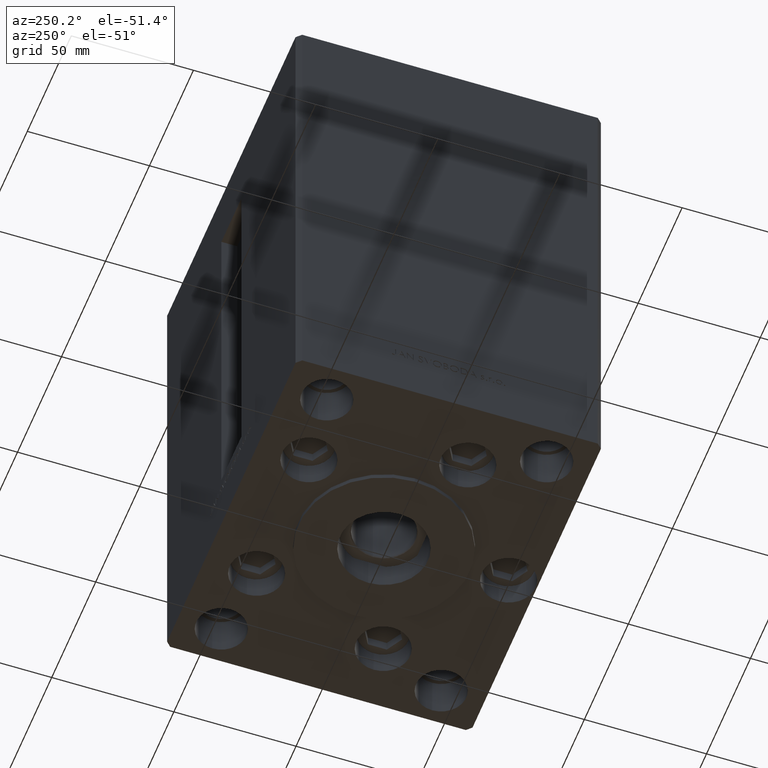
[diagram: clean part render]
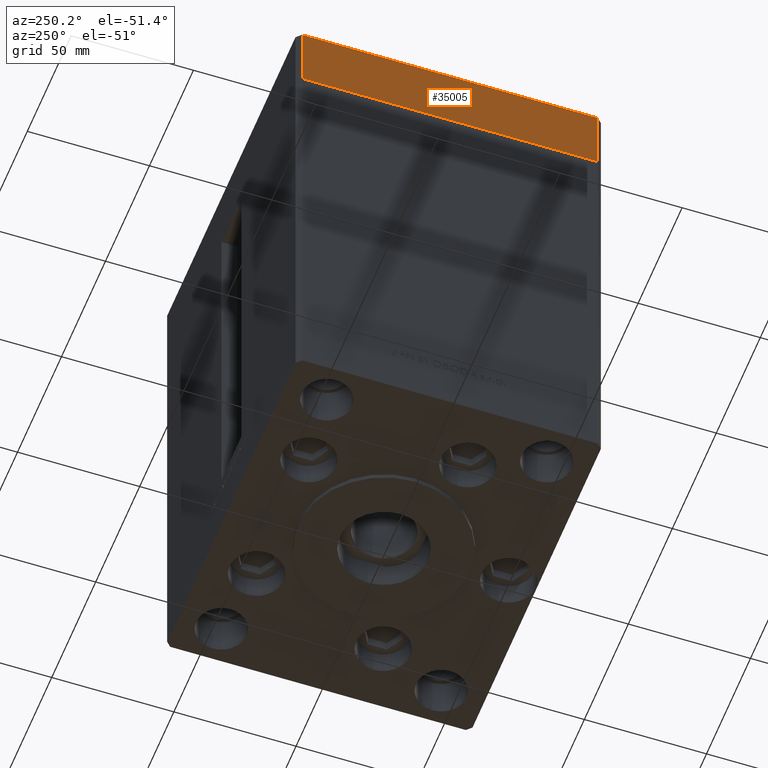
[diagram: same view with one face highlighted and labeled with its STEP entity id]
A machine part, auxiliary view. The second image highlights one B-rep face of the part: STEP entity #35005.
In plain terms, the highlighted planar face has unit normal (-1, 0, 0).
Its self-contained STEP definition (entity closure, byte-faithful):
#1502 = CARTESIAN_POINT ( 'NONE',  ( -75.00000000000001421, -60.50000000000001421, -27.00000000000000000 ) ) ;
#2463 = ORIENTED_EDGE ( 'NONE', *, *, #10858, .F. ) ;
#5903 = CARTESIAN_POINT ( 'NONE',  ( -75.00000000000001421, 60.49999999999997158, 0.000000000000000000 ) ) ;
#5921 = ORIENTED_EDGE ( 'NONE', *, *, #11187, .F. ) ;
#6433 = ORIENTED_EDGE ( 'NONE', *, *, #47262, .T. ) ;
#8633 = DIRECTION ( 'NONE',  ( 0.000000000000000000, -1.000000000000000000, 0.000000000000000000 ) ) ;
#8786 = CARTESIAN_POINT ( 'NONE',  ( -75.00000000000001421, 60.49999999999997158, -27.00000000000000000 ) ) ;
#9269 = LINE ( 'NONE', #8786, #29376 ) ;
#9276 = EDGE_LOOP ( 'NONE', ( #2463, #5921, #6433, #21689 ) ) ;
#9892 = VERTEX_POINT ( 'NONE', #1502 ) ;
#10858 = EDGE_CURVE ( 'NONE', #46720, #15529, #24188, .T. ) ;
#11187 = EDGE_CURVE ( 'NONE', #39218, #46720, #29312, .T. ) ;
#14375 = CARTESIAN_POINT ( 'NONE',  ( -75.00000000000001421, 60.49999999999997158, 0.000000000000000000 ) ) ;
#14665 = DIRECTION ( 'NONE',  ( 0.000000000000000000, 0.000000000000000000, 1.000000000000000000 ) ) ;
#14670 = FACE_OUTER_BOUND ( 'NONE', #9276, .T. ) ;
#15529 = VERTEX_POINT ( 'NONE', #30669 ) ;
#16453 = AXIS2_PLACEMENT_3D ( 'NONE', #29760, #44858, #28642 ) ;
#17939 = CARTESIAN_POINT ( 'NONE',  ( -75.00000000000001421, 60.49999999999997158, -27.00000000000000000 ) ) ;
#21689 = ORIENTED_EDGE ( 'NONE', *, *, #26815, .T. ) ;
#24188 = LINE ( 'NONE', #5903, #24699 ) ;
#24699 = VECTOR ( 'NONE', #8633, 1000.000000000000000 ) ;
#25792 = PLANE ( 'NONE',  #16453 ) ;
#26815 = EDGE_CURVE ( 'NONE', #9892, #15529, #29251, .T. ) ;
#27809 = DIRECTION ( 'NONE',  ( 0.000000000000000000, -1.000000000000000000, 0.000000000000000000 ) ) ;
#28642 = DIRECTION ( 'NONE',  ( 0.000000000000000000, 0.000000000000000000, 1.000000000000000000 ) ) ;
#29251 = LINE ( 'NONE', #44606, #43138 ) ;
#29312 = LINE ( 'NONE', #47895, #31010 ) ;
#29376 = VECTOR ( 'NONE', #27809, 1000.000000000000000 ) ;
#29760 = CARTESIAN_POINT ( 'NONE',  ( -75.00000000000001421, 60.49999999999997158, -27.00000000000000000 ) ) ;
#30669 = CARTESIAN_POINT ( 'NONE',  ( -75.00000000000001421, -60.50000000000001421, 0.000000000000000000 ) ) ;
#31010 = VECTOR ( 'NONE', #32296, 1000.000000000000000 ) ;
#32296 = DIRECTION ( 'NONE',  ( 0.000000000000000000, 0.000000000000000000, 1.000000000000000000 ) ) ;
#35005 = ADVANCED_FACE ( 'NONE', ( #14670 ), #25792, .T. ) ;
#39218 = VERTEX_POINT ( 'NONE', #17939 ) ;
#43138 = VECTOR ( 'NONE', #14665, 1000.000000000000000 ) ;
#44606 = CARTESIAN_POINT ( 'NONE',  ( -75.00000000000001421, -60.50000000000001421, -27.00000000000000000 ) ) ;
#44858 = DIRECTION ( 'NONE',  ( -1.000000000000000000, 0.000000000000000000, 0.000000000000000000 ) ) ;
#46720 = VERTEX_POINT ( 'NONE', #14375 ) ;
#47262 = EDGE_CURVE ( 'NONE', #39218, #9892, #9269, .T. ) ;
#47895 = CARTESIAN_POINT ( 'NONE',  ( -75.00000000000001421, 60.49999999999997158, -27.00000000000000000 ) ) ;